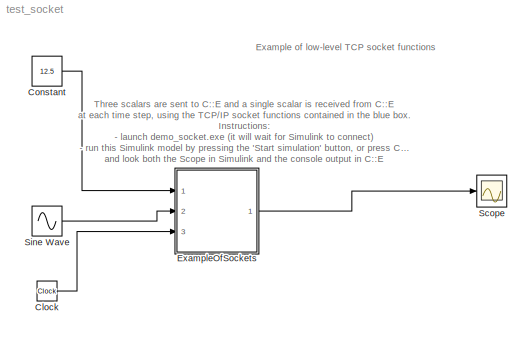
MODEL test_socket
KIND model
BLOCK [Clock] Clock
  Decimation = 10
  SID = 9
BLOCK [Constant] Constant
  OutDataType = fixdt(1, 16)
  OutScaling = 2^0
  SID = 4
  Value = 12.5
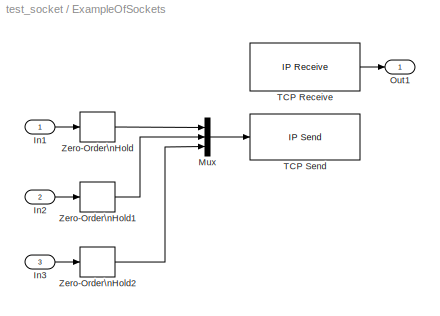
BLOCK [SubSystem] ExampleOfSockets
  FunctionWithSeparateData = off
  MaskCallbackString = ||||
  MaskDisplay = disp('C::E socket IO')\n
  MaskEnableString = on,on,on,on,on
  MaskHideContents = off
  MaskIconFrame = on
  MaskIconOpaque = on
  MaskIconRotate = none
  MaskIconUnits = autoscale
  MaskInitialization = block_receive = [gcb, '/TCP Receive'];\nset_param(block_receive, 'SampleTime', num2str(com_step));\nset_param(block_receive, 'Host', host_name);\nset_param(block_receive, 'Port', num2str(tcp_port));\nset_param(block_receive, 'DataSize', num2str(tcp_data_size));\nset_param(block_receive, 'Timeout', num2str(tcp_timeout));\nblock_send = [gcb, '/TCP Send'];\nset_param(block_send, 'Host', host_name);\n...<+49ch>
  MaskPortRotate = default
  MaskPromptString = Communication step size|Received data size (n. of scalars)|TCP host name (ex. 'localhost', or 'www.myhost.com')|TCP port (ex. 50007)|TCP timeout (seconds)
  MaskStyleString = edit,edit,edit,edit,edit
  MaskToolTipString = on,on,on,on,on
  MaskTunableValueString = off,off,off,off,off
  MaskValueString = 0.2|1|localhost|50009|10
  MaskVariables = com_step=@1;tcp_data_size=&2;host_name=&3;tcp_port=&4;tcp_timeout=&5;
  MaskVisibilityString = on,on,on,on,on
  MinAlgLoopOccurrences = off
  Opaque = off
  Ports = [3, 1]
  PropExecContextOutsideSubsystem = off
  RTWSystemCode = Auto
  RequestExecContextInheritance = off
  SID = 13
BLOCK [Inport] ExampleOfSockets/In1
  IconDisplay = Port number
  SID = 15
BLOCK [Inport] ExampleOfSockets/In2
  IconDisplay = Port number
  Port = 2
  SID = 16
BLOCK [Inport] ExampleOfSockets/In3
  IconDisplay = Port number
  Port = 3
  SID = 17
BLOCK [Mux] ExampleOfSockets/Mux
  DisplayOption = bar
  Inputs = 3
  Ports = [3, 1]
  SID = 6
BLOCK [Outport] ExampleOfSockets/Out1
  IconDisplay = Port number
  SID = 14
BLOCK [Reference] ExampleOfSockets/TCP Receive  REF=instrumentlib/TCP//IP Receive
  ByteOrder = LittleEndian
  DataSize = 1
  DataType = double
  DialogController = instrumentcreatedialog
  DialogControllerArgs = DataTag0
  EnableBlockingMode = on
  Host = localhost
  Port = 50009
  Ports = [0, 1]
  Priority = 1
  SID = 11
  SampleTime = 0.2
  SourceBlock = instrumentlib/TCP//IP Receive
  SourceType = TCP/IP Receive
  Timeout = 10
BLOCK [Reference] ExampleOfSockets/TCP Send  REF=instrumentlib/TCP//IP Send
  ByteOrder = LittleEndian
  DialogController = instrumentcreatedialog
  DialogControllerArgs = DataTag1
  EnableBlockingMode = off
  Host = localhost
  Port = 50009
  Ports = [1]
  Priority = 2
  SID = 2
  SourceBlock = instrumentlib/TCP//IP Send
  SourceType = TCP/IP Send
  Timeout = 10
BLOCK [ZeroOrderHold] ExampleOfSockets/Zero-Order\nHold
  SID = 3
  SampleTime = com_step
BLOCK [ZeroOrderHold] ExampleOfSockets/Zero-Order\nHold1
  SID = 7
  SampleTime = com_step
BLOCK [ZeroOrderHold] ExampleOfSockets/Zero-Order\nHold2
  SID = 10
  SampleTime = com_step
BLOCK [Scope] Scope
  DataFormat = StructureWithTime
  Floating = off
  NumInputPorts = 1
  Ports = [1]
  SID = 18
  SampleTime = 0
BLOCK [Sin] Sine Wave
  Amplitude = 5
  Bias = 0
  Frequency = 0.5
  Offset = 0
  Phase = 0
  Ports = [0, 1]
  SID = 1
  SampleTime = 0
  Samples = 10
ANNOTATION (root): Example of low-level TCP socket functions
ANNOTATION (root): Three scalars are sent to C::E and a single scalar is received from C::E\nat each time step, using the TCP/IP socket functions contained in the blue box.\nInstructions:\n- launch demo_socket.exe (it will wait for Simulink to connect)\n- run this Simulink model by pressing the 'Start simulation' button, or press Ctrl+T,\n and look both the Scope in Simulink and the console output in C::E
LINE Clock:1 -> ExampleOfSockets:3
LINE Constant:1 -> ExampleOfSockets:1
LINE ExampleOfSockets/In1:1 -> ExampleOfSockets/Zero-Order\nHold:1
LINE ExampleOfSockets/In2:1 -> ExampleOfSockets/Zero-Order\nHold1:1
LINE ExampleOfSockets/In3:1 -> ExampleOfSockets/Zero-Order\nHold2:1
LINE ExampleOfSockets/Mux:1 -> ExampleOfSockets/TCP Send:1
LINE ExampleOfSockets/TCP Receive:1 -> ExampleOfSockets/Out1:1
LINE ExampleOfSockets/Zero-Order\nHold1:1 -> ExampleOfSockets/Mux:2
LINE ExampleOfSockets/Zero-Order\nHold2:1 -> ExampleOfSockets/Mux:3
LINE ExampleOfSockets/Zero-Order\nHold:1 -> ExampleOfSockets/Mux:1
LINE ExampleOfSockets:1 -> Scope:1
LINE Sine Wave:1 -> ExampleOfSockets:2
